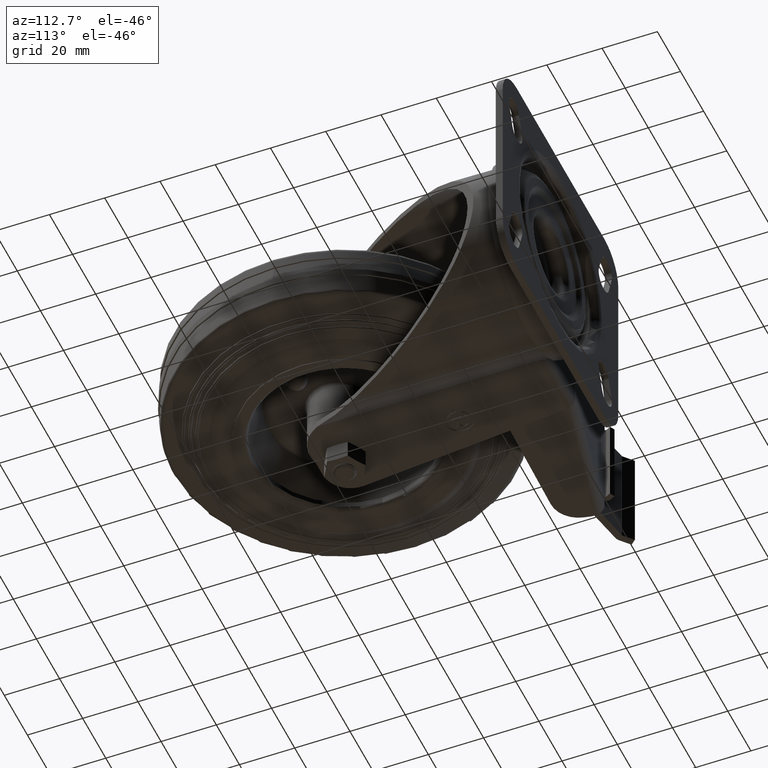
[diagram: clean part render]
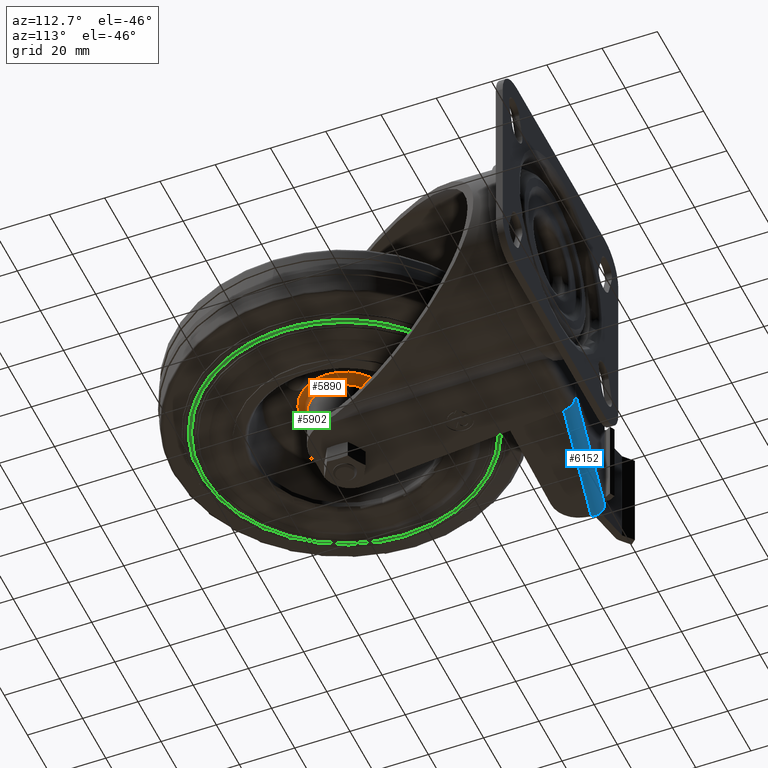
[diagram: same view with three faces highlighted in distinct colors, each labeled with its STEP entity id]
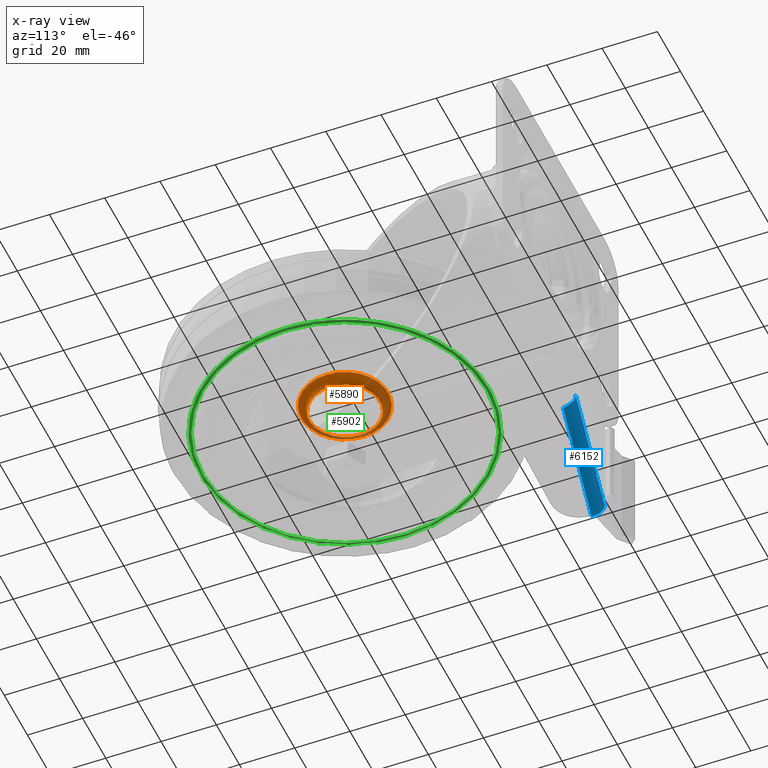
[diagram: x-ray of the same camera — body ghosted, the three highlighted faces saturated]
A machine part, auxiliary view with three faces highlighted in distinct colors.
The next image is the same camera in x-ray (body ghosted, the three faces saturated) — at least one of them is partly hidden behind the body in this view.
Their STEP definitions:

[orange] entity #5890 — the highlighted toroidal blend (fillet) surface has major radius 15.7 mm and minor (blend) radius 3 mm.
#189=TOROIDAL_SURFACE('',#6288,15.7,3.);
#296=CIRCLE('',#6287,12.7);
#297=CIRCLE('',#6289,15.7);
#298=CIRCLE('',#6290,3.);
#547=FACE_OUTER_BOUND('',#896,.T.);
#896=EDGE_LOOP('',(#3808,#3809,#3810,#3811));
#2376=VERTEX_POINT('',#8770);
#2377=VERTEX_POINT('',#8774);
#2935=EDGE_CURVE('',#2376,#2376,#296,.T.);
#2936=EDGE_CURVE('',#2377,#2377,#297,.T.);
#2937=EDGE_CURVE('',#2377,#2376,#298,.T.);
#3808=ORIENTED_EDGE('',*,*,#2936,.F.);
#3809=ORIENTED_EDGE('',*,*,#2937,.T.);
#3810=ORIENTED_EDGE('',*,*,#2935,.T.);
#3811=ORIENTED_EDGE('',*,*,#2937,.F.);
#5890=ADVANCED_FACE('',(#547),#189,.F.);
#6287=AXIS2_PLACEMENT_3D('',#8772,#7002,#7003);
#6288=AXIS2_PLACEMENT_3D('',#8773,#7004,#7005);
#6289=AXIS2_PLACEMENT_3D('',#8775,#7006,#7007);
#6290=AXIS2_PLACEMENT_3D('',#8776,#7008,#7009);
#7002=DIRECTION('center_axis',(0.,0.,1.));
#7003=DIRECTION('ref_axis',(1.,0.,0.));
#7004=DIRECTION('center_axis',(0.,0.,1.));
#7005=DIRECTION('ref_axis',(1.,0.,0.));
#7006=DIRECTION('center_axis',(0.,0.,1.));
#7007=DIRECTION('ref_axis',(1.,0.,0.));
#7008=DIRECTION('center_axis',(-1.22464679914735E-16,1.,0.));
#7009=DIRECTION('ref_axis',(-1.,-1.22464679914735E-16,0.));
#8770=CARTESIAN_POINT('',(-12.7,1.55530143491714E-15,-4.2));
#8772=CARTESIAN_POINT('Origin',(0.,0.,-4.2));
#8773=CARTESIAN_POINT('Origin',(0.,0.,-4.2));
#8774=CARTESIAN_POINT('',(-15.7,-1.92269547466134E-15,-1.2));
#8775=CARTESIAN_POINT('Origin',(0.,0.,-1.2));
#8776=CARTESIAN_POINT('Origin',(-15.7,-1.92269547466134E-15,-4.2));

[blue] entity #6152 — the highlighted cylindrical surface (edge-blend (fillet) strip) has radius 4.5 mm, axis along (0.9781, 0.2079, 0).
#63=ELLIPSE('',#6775,4.7056129042,4.5);
#173=CYLINDRICAL_SURFACE('',#6773,4.5);
#510=CIRCLE('',#6774,4.5);
#511=CIRCLE('',#6776,4.5);
#809=FACE_OUTER_BOUND('',#1197,.T.);
#1197=EDGE_LOOP('',(#5057,#5058,#5059,#5060,#5061));
#1665=LINE('',#10175,#2192);
#1667=LINE('',#10183,#2194);
#2192=VECTOR('',#8335,1000.);
#2194=VECTOR('',#8343,1000.);
#2775=VERTEX_POINT('',#10172);
#2776=VERTEX_POINT('',#10174);
#2777=VERTEX_POINT('',#10178);
#2778=VERTEX_POINT('',#10180);
#2779=VERTEX_POINT('',#10182);
#3560=EDGE_CURVE('',#2775,#2776,#1665,.T.);
#3562=EDGE_CURVE('',#2775,#2777,#510,.T.);
#3563=EDGE_CURVE('',#2777,#2778,#63,.T.);
#3564=EDGE_CURVE('',#2778,#2779,#1667,.T.);
#3565=EDGE_CURVE('',#2779,#2776,#511,.T.);
#5057=ORIENTED_EDGE('',*,*,#3560,.F.);
#5058=ORIENTED_EDGE('',*,*,#3562,.T.);
#5059=ORIENTED_EDGE('',*,*,#3563,.T.);
#5060=ORIENTED_EDGE('',*,*,#3564,.T.);
#5061=ORIENTED_EDGE('',*,*,#3565,.T.);
#6152=ADVANCED_FACE('',(#809),#173,.T.);
#6773=AXIS2_PLACEMENT_3D('',#10177,#8337,#8338);
#6774=AXIS2_PLACEMENT_3D('',#10179,#8339,#8340);
#6775=AXIS2_PLACEMENT_3D('',#10181,#8341,#8342);
#6776=AXIS2_PLACEMENT_3D('',#10184,#8344,#8345);
#8335=DIRECTION('',(-0.978147600733806,-0.207911690817759,0.));
#8337=DIRECTION('center_axis',(0.978147600733806,0.207911690817759,0.));
#8338=DIRECTION('ref_axis',(0.,0.,1.));
#8339=DIRECTION('center_axis',(-0.978147600733806,-0.207911690817759,0.));
#8340=DIRECTION('ref_axis',(0.,0.,1.));
#8341=DIRECTION('center_axis',(-0.996194698091746,0.0871557427476587,0.));
#8342=DIRECTION('ref_axis',(-0.0871557427476587,-0.996194698091745,0.));
#8343=DIRECTION('',(-0.978147600733806,-0.207911690817759,0.));
#8344=DIRECTION('center_axis',(0.978147600733806,0.207911690817759,0.));
#8345=DIRECTION('ref_axis',(0.,0.,-1.));
#10172=CARTESIAN_POINT('',(-8.50042249482425,79.9999782623429,-20.));
#10174=CARTESIAN_POINT('',(-59.2760644489161,69.207282391993,-20.));
#10175=CARTESIAN_POINT('',(-2.54350360635536,81.266160459423,-20.));
#10177=CARTESIAN_POINT('Origin',(-1.60790099767545,76.8644962561209,-20.));
#10178=CARTESIAN_POINT('',(-8.08459911318874,78.0436830608753,-23.7416573867739));
#10179=CARTESIAN_POINT('Origin',(-7.56481988614434,75.5983140590407,-20.));
#10180=CARTESIAN_POINT('',(-8.31244421749313,75.4394016017484,-24.5));
#10181=CARTESIAN_POINT('Origin',(-8.31244421749313,75.4394016017484,-20.));
#10182=CARTESIAN_POINT('',(-58.3404618402362,64.8056181886909,-24.5));
#10183=CARTESIAN_POINT('',(-1.60790099767545,76.8644962561209,-24.5));
#10184=CARTESIAN_POINT('Origin',(-58.3404618402362,64.8056181886909,-20.));

[green] entity #5902 — the highlighted toroidal blend (fillet) surface has major radius 51.7308 mm and minor (blend) radius 0.5 mm.
#194=TOROIDAL_SURFACE('',#6322,51.7307554186,0.5);
#318=CIRCLE('',#6321,51.2579961308);
#319=CIRCLE('',#6323,52.2035147064);
#320=CIRCLE('',#6324,0.5);
#559=FACE_OUTER_BOUND('',#913,.T.);
#913=EDGE_LOOP('',(#3859,#3860,#3861,#3862));
#2393=VERTEX_POINT('',#8826);
#2394=VERTEX_POINT('',#8830);
#2961=EDGE_CURVE('',#2393,#2393,#318,.T.);
#2963=EDGE_CURVE('',#2394,#2394,#319,.T.);
#2964=EDGE_CURVE('',#2394,#2393,#320,.T.);
#3859=ORIENTED_EDGE('',*,*,#2963,.F.);
#3860=ORIENTED_EDGE('',*,*,#2964,.T.);
#3861=ORIENTED_EDGE('',*,*,#2961,.T.);
#3862=ORIENTED_EDGE('',*,*,#2964,.F.);
#5902=ADVANCED_FACE('',(#559),#194,.T.);
#6321=AXIS2_PLACEMENT_3D('',#8827,#7074,#7075);
#6322=AXIS2_PLACEMENT_3D('',#8829,#7077,#7078);
#6323=AXIS2_PLACEMENT_3D('',#8831,#7079,#7080);
#6324=AXIS2_PLACEMENT_3D('',#8832,#7081,#7082);
#7074=DIRECTION('center_axis',(0.,0.,1.));
#7075=DIRECTION('ref_axis',(1.,0.,0.));
#7077=DIRECTION('center_axis',(0.,0.,1.));
#7078=DIRECTION('ref_axis',(1.,0.,0.));
#7079=DIRECTION('center_axis',(0.,0.,1.));
#7080=DIRECTION('ref_axis',(1.,0.,0.));
#7081=DIRECTION('center_axis',(1.22464679914735E-16,-1.,0.));
#7082=DIRECTION('ref_axis',(-1.,-1.22464679914735E-16,0.));
#8826=CARTESIAN_POINT('',(-51.2579961308,-6.27729408922917E-15,-14.1209323608879));
#8827=CARTESIAN_POINT('Origin',(0.,0.,-14.1209323608879));
#8829=CARTESIAN_POINT('Origin',(0.,0.,-13.9581482836593));
#8830=CARTESIAN_POINT('',(-52.2035147064,-6.39308671894345E-15,-13.7953642064307));
#8831=CARTESIAN_POINT('Origin',(0.,0.,-13.7953642064307));
#8832=CARTESIAN_POINT('Origin',(-51.7307554186,-6.33519040408631E-15,-13.9581482836593));